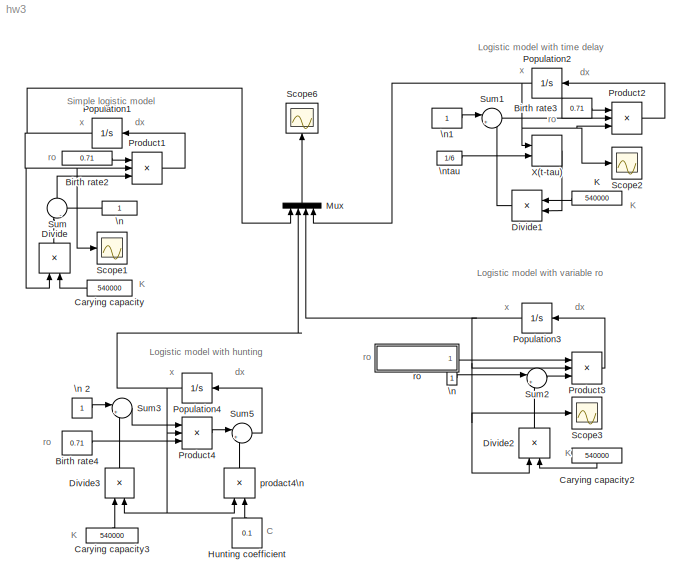
MODEL hw3
KIND model
BLOCK [Scope]  Scope6
  DataFormat = StructureWithTime
  Floating = off
  NumInputPorts = 1
  Ports = [1]
  SID = 116
  SampleTime = 0
  SaveName = ScopeData1
  ShowLegends = on
  ZoomMode = xonly
BLOCK [Constant] Birth rate2
  SID = 12
  Value = 0.71
BLOCK [Constant] Birth rate3
  SID = 23
  Value = 0.71
BLOCK [Constant] Birth rate4
  SID = 73
  Value = 0.71
BLOCK [Constant] Carying capacity
  SID = 13
  Value = 540000
BLOCK [Constant] Carying capacity2
  SID = 50
  Value = 540000
BLOCK [Constant] Carying capacity3
  SID = 74
  Value = 540000
BLOCK [Product] Divide
  InputSameDT = off
  Inputs = */
  OutDataTypeStr = Inherit: Inherit via internal rule
  Ports = [2, 1]
  RndMeth = Floor
  SID = 17
  SaturateOnIntegerOverflow = off
BLOCK [Product] Divide1
  InputSameDT = off
  Inputs = /*
  OutDataTypeStr = Inherit: Inherit via internal rule
  Ports = [2, 1]
  RndMeth = Floor
  SID = 25
  SaturateOnIntegerOverflow = off
BLOCK [Product] Divide2
  InputSameDT = off
  Inputs = */
  OutDataTypeStr = Inherit: Inherit via internal rule
  Ports = [2, 1]
  RndMeth = Floor
  SID = 51
  SaturateOnIntegerOverflow = off
BLOCK [Product] Divide3
  InputSameDT = off
  Inputs = /*
  OutDataTypeStr = Inherit: Inherit via internal rule
  Ports = [2, 1]
  RndMeth = Floor
  SID = 75
  SaturateOnIntegerOverflow = off
BLOCK [Constant] Hunting coefficient
  SID = 82
  Value = 0.1
BLOCK [Constant] K
  SID = 24
  Value = 540000
BLOCK [Mux] Mux
  DisplayOption = bar
  Ports = [4, 1]
  SID = 117
BLOCK [Integrator] Population1
  InitialCondition = 540000/4
  Ports = [1, 1]
  SID = 10
BLOCK [Integrator] Population2
  InitialCondition = 540000/4
  Ports = [1, 1]
  SID = 26
BLOCK [Integrator] Population3
  InitialCondition = 540000/4
  Ports = [1, 1]
  SID = 52
BLOCK [Integrator] Population4
  InitialCondition = 540000/4
  Ports = [1, 1]
  SID = 76
BLOCK [Product] Product1
  InputSameDT = off
  Inputs = 3
  OutDataTypeStr = Inherit: Inherit via internal rule
  Ports = [3, 1]
  RndMeth = Floor
  SID = 16
  SaturateOnIntegerOverflow = off
BLOCK [Product] Product2
  InputSameDT = off
  Inputs = 3
  OutDataTypeStr = Inherit: Inherit via internal rule
  Ports = [3, 1]
  RndMeth = Floor
  SID = 27
  SaturateOnIntegerOverflow = off
BLOCK [Product] Product3
  InputSameDT = off
  Inputs = 3
  OutDataTypeStr = Inherit: Inherit via internal rule
  Ports = [3, 1]
  RndMeth = Floor
  SID = 53
  SaturateOnIntegerOverflow = off
BLOCK [Product] Product4
  InputSameDT = off
  Inputs = 3
  OutDataTypeStr = Inherit: Inherit via internal rule
  Ports = [3, 1]
  RndMeth = Floor
  SID = 77
  SaturateOnIntegerOverflow = off
BLOCK [Scope] Scope1
  DataFormat = StructureWithTime
  Floating = off
  NumInputPorts = 1
  Ports = [1]
  SID = 156
  SampleTime = 0
  SaveName = ScopeData3
  ShowLegends = off
  ZoomMode = xonly
BLOCK [Scope] Scope2
  DataFormat = StructureWithTime
  Floating = off
  NumInputPorts = 1
  Ports = [1]
  SID = 28
  SampleTime = 0
  SaveName = ScopeData2
  ShowLegends = off
  ZoomMode = xonly
BLOCK [Scope] Scope3
  DataFormat = StructureWithTime
  Floating = off
  NumInputPorts = 1
  Ports = [1]
  SID = 147
  SampleTime = 0
  SaveName = ScopeData6
  ShowLegends = off
  ZoomMode = xonly
BLOCK [Sum] Sum
  IconShape = round
  InputSameDT = off
  Inputs = |-+
  OutDataTypeStr = Inherit: Inherit via internal rule
  Ports = [2, 1]
  SID = 15
  SaturateOnIntegerOverflow = off
BLOCK [Sum] Sum1
  IconShape = round
  InputSameDT = off
  Inputs = |+-
  OutDataTypeStr = Inherit: Inherit via internal rule
  Ports = [2, 1]
  SID = 29
  SaturateOnIntegerOverflow = off
BLOCK [Sum] Sum2
  IconShape = round
  InputSameDT = off
  Inputs = |+-
  OutDataTypeStr = Inherit: Inherit via internal rule
  Ports = [2, 1]
  SID = 55
  SaturateOnIntegerOverflow = off
BLOCK [Sum] Sum3
  IconShape = round
  InputSameDT = off
  Inputs = |+-
  OutDataTypeStr = Inherit: Inherit via internal rule
  Ports = [2, 1]
  SID = 79
  SaturateOnIntegerOverflow = off
BLOCK [Sum] Sum5
  IconShape = round
  InputSameDT = off
  Inputs = |+-
  OutDataTypeStr = Inherit: Inherit via internal rule
  Ports = [2, 1]
  SID = 85
  SaturateOnIntegerOverflow = off
BLOCK [VariableTransportDelay] X(t-tau)
  MaximumDelay = 10
  Ports = [2, 1]
  SID = 35
BLOCK [Constant] \n
  SID = 14
BLOCK [Constant] \n 
  SID = 71
BLOCK [Constant] \n 2
  SID = 72
BLOCK [Constant] \n1
  SID = 22
BLOCK [Constant] \ntau
  SID = 34
  Value = 1/6
BLOCK [Product] prodact4\n
  InputSameDT = off
  Inputs = **
  OutDataTypeStr = Inherit: Inherit via internal rule
  Ports = [2, 1]
  RndMeth = Floor
  SID = 83
  SaturateOnIntegerOverflow = off
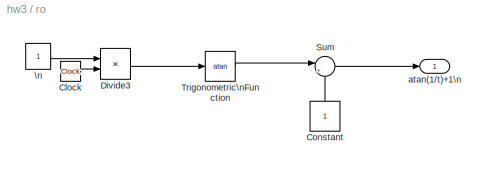
BLOCK [SubSystem] ro
  FunctionWithSeparateData = off
  MaskHideContents = off
  MinAlgLoopOccurrences = off
  Opaque = off
  Ports = [0, 1]
  PropExecContextOutsideSubsystem = off
  RTWSystemCode = Auto
  RequestExecContextInheritance = off
  SID = 62
BLOCK [Clock] ro/Clock
  SID = 66
BLOCK [Constant] ro/Constant
  SID = 69
BLOCK [Product] ro/Divide3
  InputSameDT = off
  Inputs = */
  OutDataTypeStr = Inherit: Inherit via internal rule
  Ports = [2, 1]
  RndMeth = Floor
  SID = 67
  SaturateOnIntegerOverflow = off
BLOCK [Sum] ro/Sum
  IconShape = round
  InputSameDT = off
  Inputs = |++
  OutDataTypeStr = Inherit: Inherit via internal rule
  Ports = [2, 1]
  SID = 70
  SaturateOnIntegerOverflow = off
BLOCK [Trigonometry] ro/Trigonometric\nFunction
  Operator = atan
  Ports = [1, 1]
  SID = 68
BLOCK [Constant] ro/\n
  SID = 65
BLOCK [Outport] ro/atan(1//t)+1\n
  IconDisplay = Port number
  SID = 64
ANNOTATION (root): C
ANNOTATION (root): K
ANNOTATION (root): Logistic model with hunting
ANNOTATION (root): Logistic model with time delay
ANNOTATION (root): Logistic model with variable ro
ANNOTATION (root): Simple logistic model
ANNOTATION (root): dx
ANNOTATION (root): ro
ANNOTATION (root): x
LINE Birth rate2:1 -> Product1:1
LINE Birth rate3:1 -> Product2:1
LINE Birth rate4:1 -> Product4:3
LINE Carying capacity2:1 -> Divide2:2
LINE Carying capacity3:1 -> Divide3:1
LINE Carying capacity:1 -> Divide:2
LINE Divide1:1 -> Sum1:2
LINE Divide2:1 -> Sum2:2
LINE Divide3:1 -> Sum3:2
LINE Divide:1 -> Sum:1
LINE Hunting coefficient:1 -> prodact4\n:2
LINE K:1 -> Divide1:1
LINE Mux:1 ->  Scope6:1
NET Population1:1 -> Divide:1, Mux:1, Product1:2, Scope1:1
NET Population2:1 -> Mux:4, Product2:3, Scope2:1, X(t-tau):1
NET Population3:1 -> Divide2:1, Mux:3, Product3:2, Scope3:1
NET Population4:1 -> Divide3:2, Mux:2, Product4:2, prodact4\n:1
LINE Product1:1 -> Population1:1
LINE Product2:1 -> Population2:1
LINE Product3:1 -> Population3:1
LINE Product4:1 -> Sum5:1
LINE Sum1:1 -> Product2:2
LINE Sum2:1 -> Product3:3
LINE Sum3:1 -> Product4:1
LINE Sum5:1 -> Population4:1
LINE Sum:1 -> Product1:3
LINE X(t-tau):1 -> Divide1:2
LINE \n 2:1 -> Sum3:1
LINE \n :1 -> Sum2:1
LINE \n1:1 -> Sum1:1
LINE \n:1 -> Sum:2
LINE \ntau:1 -> X(t-tau):2
LINE prodact4\n:1 -> Sum5:2
LINE ro/Clock:1 -> ro/Divide3:2
LINE ro/Constant:1 -> ro/Sum:2
LINE ro/Divide3:1 -> ro/Trigonometric\nFunction:1
LINE ro/Sum:1 -> ro/atan(1//t)+1\n:1
LINE ro/Trigonometric\nFunction:1 -> ro/Sum:1
LINE ro/\n:1 -> ro/Divide3:1
LINE ro:1 -> Product3:1
note: NET lines group one-source signal fan-out (src -> all destinations, sorted); 1:1 wires keep LINE
